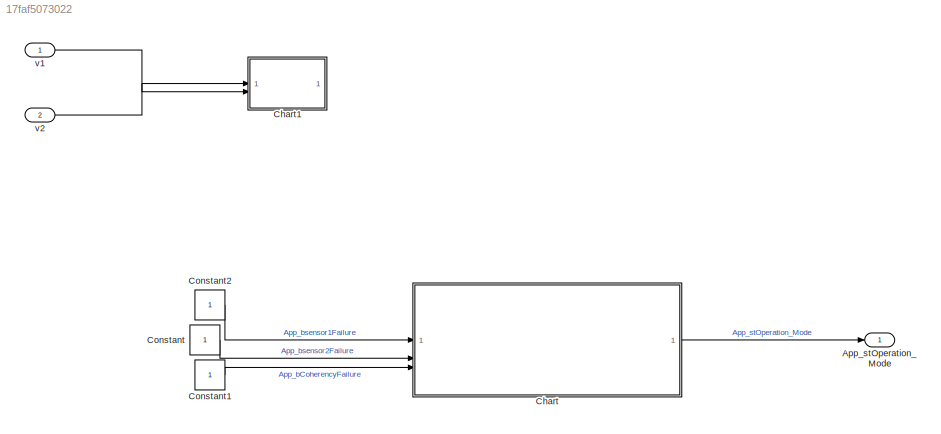
MODEL slx_17faf5073022
KIND model
CONFIG AbsTol = auto
CONFIG EnableMultiTasking = off
CONFIG FixedStep = auto
CONFIG MaxStep = auto
CONFIG MinStep = auto
CONFIG RelTol = 1e-3
CONFIG SampleTimeConstraint = Unconstrained
CONFIG SolverName = VariableStepAuto
CONFIG StartTime = 0.0
CONFIG StopTime = 10.0
BLOCK [Outport] App_stOperation_Mode
  OutDataTypeStr = Enum: App_modes
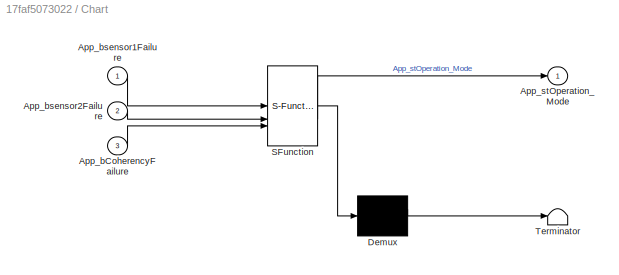
BLOCK [SubSystem] Chart
  ErrorFcn = Stateflow.Translate.translate
  PermitHierarchicalResolution = ExplicitOnly
  SFBlockType = Chart
  TreatAsAtomicUnit = on
BLOCK [Demux] Chart/ Demux 
  Outputs = 1
BLOCK [S-Function] Chart/ SFunction 
  EnableBusSupport = on
  FunctionName = sf_sfun
  PortCounts = [3 2]
  SFcnIsStateOwnerBlock = off
  SFunctionDeploymentMode = off
  Tag = Stateflow S-Function 3
BLOCK [Terminator] Chart/ Terminator 
BLOCK [Inport] Chart/App_bCoherencyFailure
  Port = 3
BLOCK [Inport] Chart/App_bsensor1Failure
BLOCK [Inport] Chart/App_bsensor2Failure
  Port = 2
BLOCK [Outport] Chart/App_stOperation_Mode
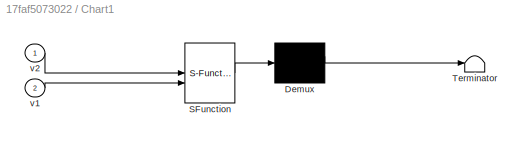
BLOCK [SubSystem] Chart1
  ErrorFcn = Stateflow.Translate.translate
  PermitHierarchicalResolution = ExplicitOnly
  PortSchema = {"entries":[{"content":{"sides":[{"content":{"connectorIds":["In2","In1"]},"type":"ConnectorPlacement.EquallySpacedRectSide","uuid":"969f0c33-844b-45d6-9c47-d424376eedef"},{"content":{"connectorIds":[],"side":"RIGHT"},"type":"ConnectorPlacement.EquallySpacedRectSide","uuid":"6fc1ba59-4f2d-4ccb-a718-6a4f6694da1f"},{"content":{"connectorIds":[],"side":"TOP"},"type":"ConnectorPlacement.EquallySpacedR...<+384ch>
  SFBlockType = Chart
  TreatAsAtomicUnit = on
BLOCK [Demux] Chart1/ Demux 
  Outputs = 1
BLOCK [S-Function] Chart1/ SFunction 
  EnableBusSupport = on
  FunctionName = sf_sfun
  PortCounts = [2 1]
  SFcnIsStateOwnerBlock = off
  SFunctionDeploymentMode = off
  Tag = Stateflow S-Function 1
BLOCK [Terminator] Chart1/ Terminator 
BLOCK [Inport] Chart1/v1
  Port = 2
BLOCK [Inport] Chart1/v2
BLOCK [Constant] Constant
BLOCK [Constant] Constant1
BLOCK [Constant] Constant2
BLOCK [Inport] v1
BLOCK [Inport] v2
  Port = 2
LINE Chart:1 -> App_stOperation_Mode:1
LINE Constant1:1 -> Chart:3
LINE Constant2:1 -> Chart:1
LINE Constant:1 -> Chart:2
LINE v1:1 -> Chart1:2
LINE v2:1 -> Chart1:1
CHART Chart1 states=0 transitions=0
CHART Chart states=5 transitions=5
  STATE_LABEL 'Modes'
  STATE_LABEL 'Normal\nentry:\nApp_stOperation_Mode=App_modes.Normal;'
  STATE_LABEL 'Downgraded_Sen1\nentry:\nApp_stOperation_Mode=App_modes.Downgraded_sen_1;'
  STATE_LABEL 'Downgraded_Sen2\nentry:\nApp_stOperation_Mode=App_modes.Downgraded_sen_2;\n'
  STATE_LABEL 'Failure\nentry:\nApp_stOperation_Mode=App_modes.Failure;'
  STATE_LABEL '[~App_bCoherencyFailure && ~App_bsensor2Failure && ~App_bsensor1Failure]'
  STATE_LABEL '[[App_bsensor2Failure && ~App_bsensor1Failure]]'
  STATE_LABEL '[[~App_bsensor2Failure && App_bsensor1Failure]]'
  STATE_LABEL '[App_bCoherencyFailure]'
  STATE_LABEL 'Normal\nentry:\nApp_stOperation_Mode=App_modes.Normal;'
  STATE_LABEL 'Downgraded_Sen1\nentry:\nApp_stOperation_Mode=App_modes.Downgraded_sen_1;'
  STATE_LABEL 'Downgraded_Sen2\nentry:\nApp_stOperation_Mode=App_modes.Downgraded_sen_2;\n'
  STATE_LABEL 'Failure\nentry:\nApp_stOperation_Mode=App_modes.Failure;'
CHART  states=0 transitions=0
CHART  states=0 transitions=0
